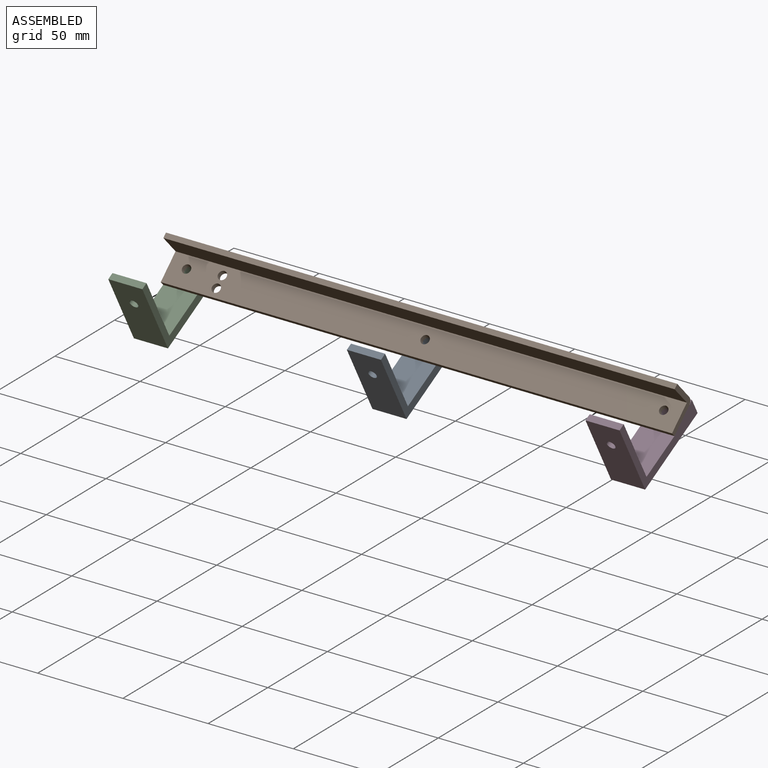
[diagram: assembled view]
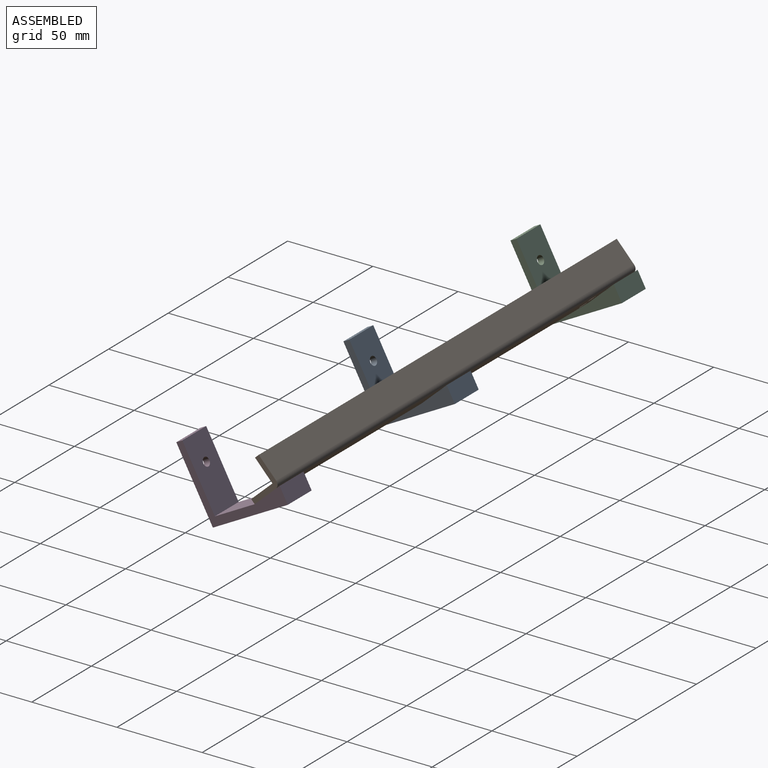
[diagram: assembled view, second angle]
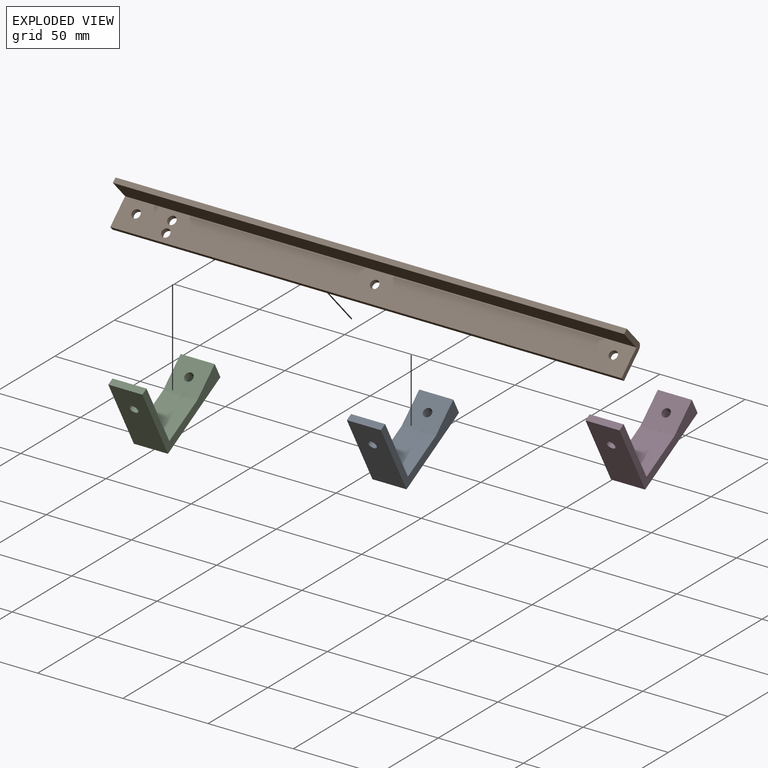
[diagram: exploded view]
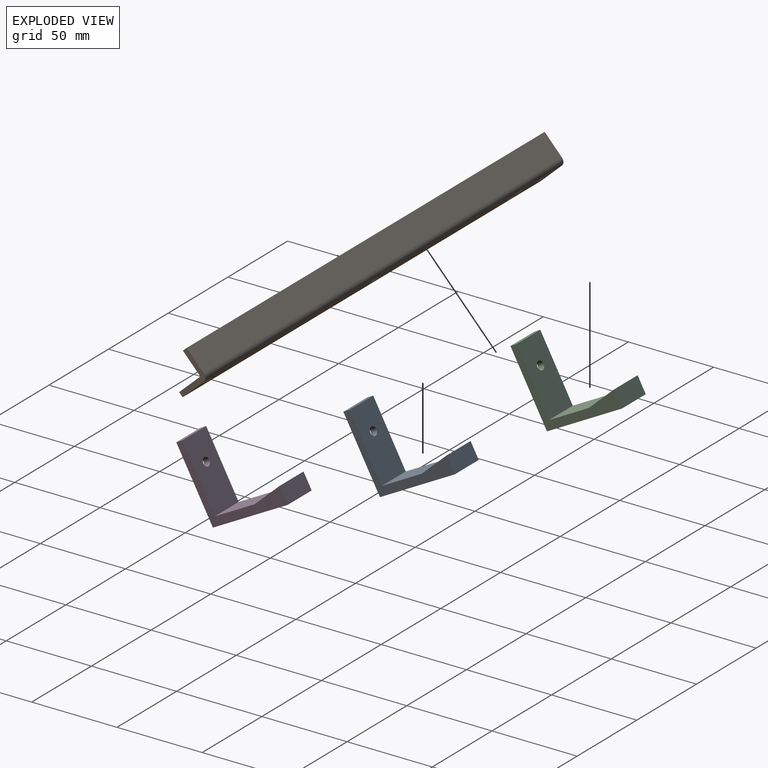
[diagram: exploded view, second angle]
ASSEMBLY  parts=4 mates=3
PART A: 24 faces, bbox 20x50x45.2 mm
  f0: cylinder r=2.5mm len=0.95mm, axis (0,-0.25,-0.97), area 0.2mm2, adj f4,f17
  f1: cylinder r=2.5mm len=0.95mm, axis (0,-0.25,-0.97), area 0.2mm2, adj f4,f16
  f2: cylinder r=2.5mm len=8.28mm, axis (0,-0.25,-0.97), area 79.3mm2, adj f4,f9,f13,f14,f15,f19,f20,f22
  f3: plane 20x10mm, normal (0,1,0), area 200mm2, adj f4,f9,f10,f11
  f4: plane 50x20mm, normal (0,0,1), area 978.2mm2, adj f0,f1,f2,f3,f5,f10,f11,f14
  f5: plane 45x20mm, normal (0,-1,0), area 880.4mm2, adj f4,f6,f10,f11,f12
  f6: plane 20x4mm, normal (0,0,-1), area 80mm2, adj f5,f7,f10,f11
  f7: plane 40x20mm, normal (0,1,0), area 780.4mm2, adj f6,f8,f10,f11,f12
  f8: plane 26.64x20mm, normal (0,0,-1), area 532.7mm2, adj f7,f9,f10,f11
  f9: plane 20x19.37mm, normal (0,-0.25,-0.97), area 380.4mm2, adj f2,f3,f8,f10,f11
  f10: plane 50x45mm, normal (1,0,0), area 458.4mm2, adj f3,f4,f5,f6,f7,f8,f9
  f11: plane 50x45mm, normal (-1,0,0), area 458.4mm2, adj f3,f4,f5,f6,f7,f8,f9
  f12: cylinder r=2.5mm len=5mm, axis (0,-1,0), area 62.8mm2, adj f5,f7
  f13: plane 0.43x0.04mm, normal (0,0,1), area 0mm2, adj f2,f14,f18
  f14: plane 4x0.83mm, normal (0.5,0.87,0), area 1.3mm2, adj f2,f4,f13,f18
  f15: plane 5x3.92mm, normal (0,0,1), area 5.8mm2, adj f2,f16,f17,f18,f21
  f16: plane 4x2.5mm, normal (0.5,-0.87,0), area 11.3mm2, adj f1,f4,f15,f17,f18
  f17: plane 4x2.5mm, normal (-0.5,-0.87,0), area 11.3mm2, adj f0,f4,f15,f16,f21
  f18: plane 4x2.89mm, normal (1,0,0), area 11.5mm2, adj f4,f13,f14,f15,f16
  f19: plane 0.43x0.04mm, normal (0,0,1), area 0mm2, adj f2,f20,f21
  f20: plane 4x0.83mm, normal (-0.5,0.87,0), area 1.3mm2, adj f2,f4,f19,f21
  f21: plane 4x2.89mm, normal (-1,0,0), area 11.5mm2, adj f4,f15,f17,f19,f20
  f22: plane 1.18x0.71mm, normal (0.5,0.87,0), area 0.4mm2, adj f2,f4,f23
  f23: plane 1.18x0.71mm, normal (-0.5,0.87,0), area 0.4mm2, adj f2,f4,f22
PART B: 14 faces, bbox 300x20x18 mm
  f0: plane 20x18mm, normal (1,0,0), area 103.1mm2, adj f1,f3,f4,f5,f11,f12,f13
  f1: plane 300x15mm, normal (0,1,0), area 4500mm2, adj f0,f2,f12,f13
  f2: plane 20x18mm, normal (-1,0,0), area 103.1mm2, adj f1,f3,f4,f5,f11,f12,f13
  f3: plane 300x3mm, normal (0,-1,0), area 900mm2, adj f0,f2,f4,f5
  f4: plane 300x17mm, normal (0,0,1), area 5001.8mm2, adj f0,f2,f3,f6,f7,f8,f9,f10
  f5: plane 300x17mm, normal (0,0,-1), area 5001.8mm2, adj f0,f2,f3,f6,f7,f8,f9,f10
  f6: cylinder r=2.5mm len=5mm, axis (0,0,1), area 47.1mm2, adj f4,f5
  f7: cylinder r=2.5mm len=5mm, axis (0,0,1), area 47.1mm2, adj f4,f5
  f8: cylinder r=2.5mm len=5mm, axis (0,0,1), area 47.1mm2, adj f4,f5
  f9: cylinder r=2.5mm len=5mm, axis (0,0,1), area 47.1mm2, adj f4,f5
  f10: cylinder r=2.5mm len=5mm, axis (0,0,1), area 47.1mm2, adj f4,f5
  f11: plane 300x15mm, normal (0,-1,0), area 4500mm2, adj f0,f2,f4,f12
  f12: plane 300x3mm, normal (0,0,1), area 900mm2, adj f0,f1,f2,f11
  f13: cylinder r=3mm len=300mm, axis (-1,0,0), area 1413.7mm2, adj f0,f1,f2,f5
PART C: same geometry as A
PART D: same geometry as A
PLACE A rot(axis=(0,-0.97,-0.25),180deg) t=(-446.04,-100.71,134.75)mm
PLACE B rot(axis=(1,0,0),43deg) t=(-456.04,-86.08,145.53)mm
PLACE C rot(axis=(0,-0.97,-0.25),180deg) t=(-586.04,-100.71,134.75)mm
PLACE D rot(axis=(0,-0.97,-0.25),180deg) t=(-306.04,-100.71,134.75)mm
MATE fastened B.f10 <-> D.f0  axis (0,0.68,-0.73) through (-316.04,-86.08,145.53)mm
MATE fastened A.f0 <-> B.f9  axis (0,-0.68,0.73) through (-456.04,-86.08,145.53)mm
MATE fastened C.f0 <-> B.f8  axis (0,-0.68,0.73) through (-596.04,-88.12,147.72)mm
